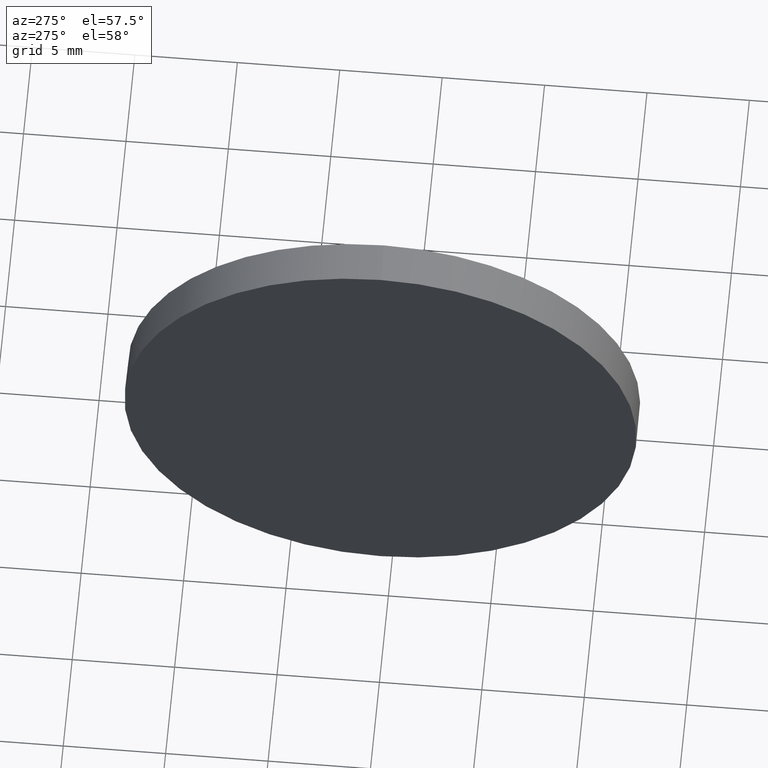
[diagram: clean part render]
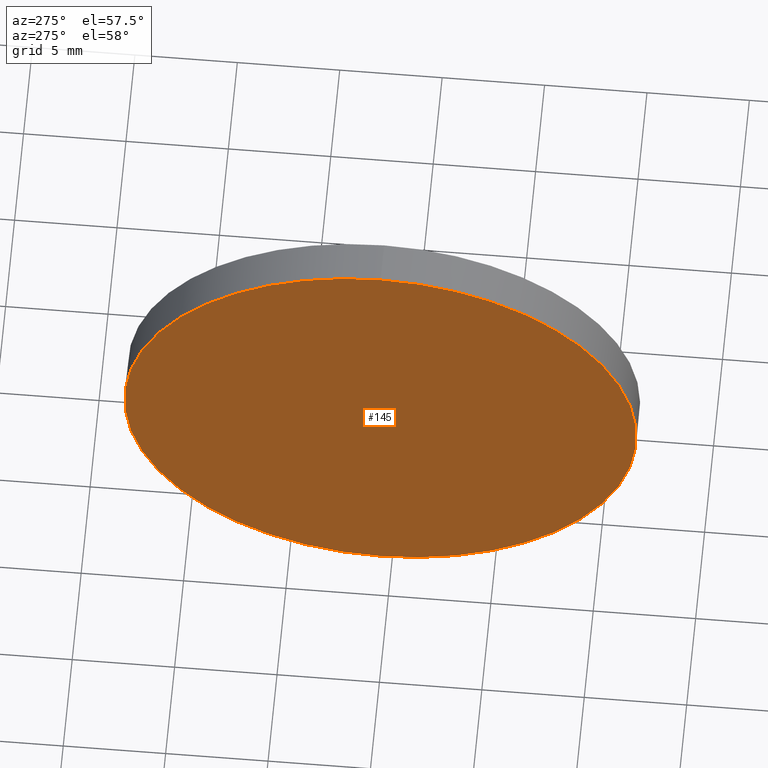
[diagram: same view with one face highlighted and labeled with its STEP entity id]
A machine part, auxiliary view. The second image highlights one B-rep face of the part: STEP entity #145.
In plain terms, the highlighted planar face has unit normal (1, 0, 0).
Its self-contained STEP definition (entity closure, byte-faithful):
#3 = DIRECTION ( 'NONE',  ( 0.0000000000000000000, 0.0000000000000000000, 1.000000000000000000 ) ) ;
#6 = CARTESIAN_POINT ( 'NONE',  ( 691.9125718572777300, 125.5543078984230900, 0.0000000000000000000 ) ) ;
#7 = CIRCLE ( 'NONE', #129, 12.49999999999998400 ) ;
#14 = EDGE_CURVE ( 'NONE', #173, #159, #7, .T. ) ;
#15 = CIRCLE ( 'NONE', #98, 12.49999999999998400 ) ;
#21 = ORIENTED_EDGE ( 'NONE', *, *, #34, .T. ) ;
#22 = DIRECTION ( 'NONE',  ( -1.000000000000000000, -0.0000000000000000000, -0.0000000000000000000 ) ) ;
#25 = ORIENTED_EDGE ( 'NONE', *, *, #14, .T. ) ;
#34 = EDGE_CURVE ( 'NONE', #159, #173, #15, .T. ) ;
#40 = EDGE_LOOP ( 'NONE', ( #21, #25 ) ) ;
#53 = DIRECTION ( 'NONE',  ( 0.0000000000000000000, 0.0000000000000000000, -1.000000000000000000 ) ) ;
#67 = CARTESIAN_POINT ( 'NONE',  ( 691.9125718572777300, 125.5543078984230900, 0.0000000000000000000 ) ) ;
#79 = DIRECTION ( 'NONE',  ( 1.000000000000000000, 0.0000000000000000000, 0.0000000000000000000 ) ) ;
#82 = CARTESIAN_POINT ( 'NONE',  ( 691.9125718572777300, 125.5543078984230900, 12.49999999999998400 ) ) ;
#83 = AXIS2_PLACEMENT_3D ( 'NONE', #6, #79, #53 ) ;
#84 = CARTESIAN_POINT ( 'NONE',  ( 691.9125718572777300, 125.5543078984230900, -12.49999999999998400 ) ) ;
#87 = FACE_OUTER_BOUND ( 'NONE', #40, .T. ) ;
#98 = AXIS2_PLACEMENT_3D ( 'NONE', #147, #22, #3 ) ;
#103 = DIRECTION ( 'NONE',  ( 0.0000000000000000000, 0.0000000000000000000, 1.000000000000000000 ) ) ;
#129 = AXIS2_PLACEMENT_3D ( 'NONE', #67, #148, #103 ) ;
#145 = ADVANCED_FACE ( 'NONE', ( #87 ), #180, .F. ) ;
#147 = CARTESIAN_POINT ( 'NONE',  ( 691.9125718572777300, 125.5543078984230900, 0.0000000000000000000 ) ) ;
#148 = DIRECTION ( 'NONE',  ( -1.000000000000000000, -0.0000000000000000000, -0.0000000000000000000 ) ) ;
#159 = VERTEX_POINT ( 'NONE', #82 ) ;
#173 = VERTEX_POINT ( 'NONE', #84 ) ;
#180 = PLANE ( 'NONE',  #83 ) ;